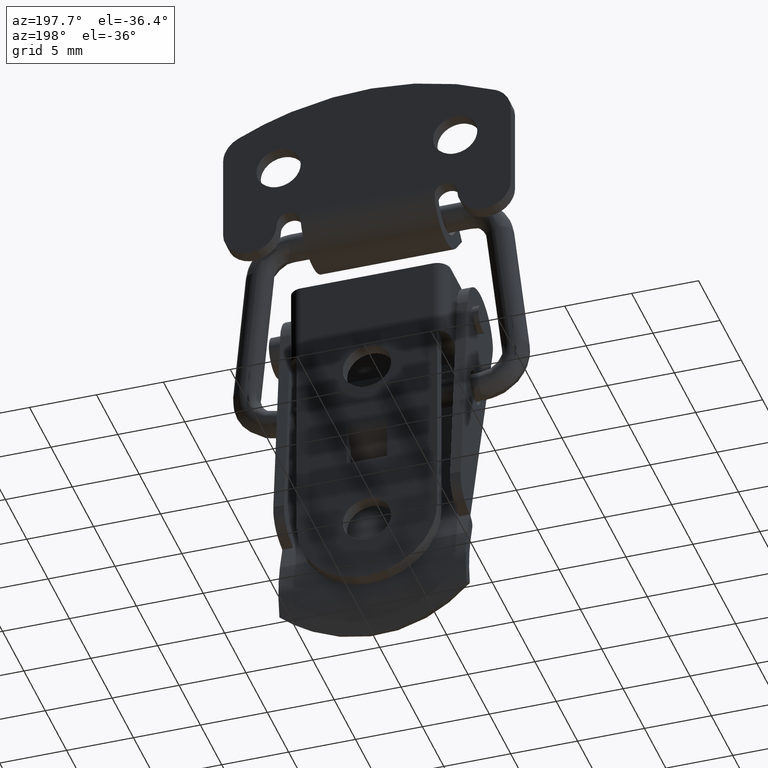
[diagram: clean part render]
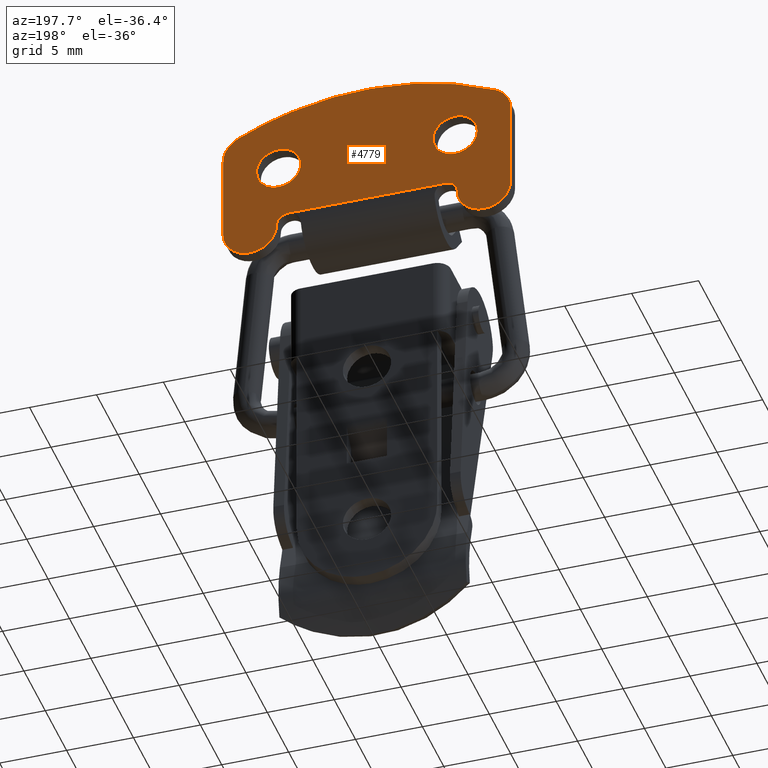
[diagram: same view with one face highlighted and labeled with its STEP entity id]
A machine part, auxiliary view. The second image highlights one B-rep face of the part: STEP entity #4779.
In plain terms, the highlighted face is a freeform B-spline surface patch.
Its self-contained STEP definition (entity closure, byte-faithful):
#4032=CARTESIAN_POINT('',(-8.249999999999767,2.999999999999890,5.000000634479513));
#4033=VERTEX_POINT('',#4032);
#4034=CARTESIAN_POINT('',(-7.816507687401343,3.000000000003440,6.114723987338057));
#4035=VERTEX_POINT('',#4034);
#4036=CARTESIAN_POINT('',(-8.249999999999767,2.999999999999890,5.000000634479513));
#4037=CARTESIAN_POINT('',(-8.250055250174205,3.000000000000380,5.152995649112715));
#4038=CARTESIAN_POINT('',(-8.214272614105509,3.000000000001187,5.407944703312099));
#4039=CARTESIAN_POINT('',(-8.065757588789712,3.000000000002409,5.789814283645971));
#4040=CARTESIAN_POINT('',(-7.919917181299535,3.000000000003078,6.001965037808980));
#4041=CARTESIAN_POINT('',(-7.816507687401343,3.000000000003440,6.114723987338057));
#4042=B_SPLINE_CURVE_WITH_KNOTS('',3,(#4036,#4037,#4038,#4039,#4040,#4041),.UNSPECIFIED.,.F.,.U.,(4,1,1,4),(0.000000014162469,0.458969608806597,0.764948868975775,1.223918463629260),.UNSPECIFIED.);
#4043=EDGE_CURVE('',#4033,#4035,#4042,.T.);
#4089=CARTESIAN_POINT('',(-5.383492312598440,3.000000000003440,3.885276012661946));
#4090=VERTEX_POINT('',#4089);
#4096=CARTESIAN_POINT('',(-6.599999999999890,2.999999999999890,3.350000000000000));
#4097=VERTEX_POINT('',#4096);
#4098=CARTESIAN_POINT('',(-5.383492312598440,3.000000000003440,3.885276012661946));
#4099=CARTESIAN_POINT('',(-5.494153658532897,3.000000000003122,3.764410641251468));
#4100=CARTESIAN_POINT('',(-5.695854133266082,3.000000000002518,3.601430605762216));
#4101=CARTESIAN_POINT('',(-6.108517466391270,3.000000000001345,3.403661427441670));
#4102=CARTESIAN_POINT('',(-6.400478047916385,3.000000000000465,3.349814301085778));
#4103=CARTESIAN_POINT('',(-6.599999999999890,2.999999999999890,3.350000000000000));
#4104=B_SPLINE_CURVE_WITH_KNOTS('',3,(#4098,#4099,#4100,#4101,#4102,#4103),.UNSPECIFIED.,.F.,.U.,(4,1,1,4),(0.000000019402058,0.491594447518936,0.769443762040671,1.367911378273335),.UNSPECIFIED.);
#4105=EDGE_CURVE('',#4090,#4097,#4104,.T.);
#4107=CARTESIAN_POINT('',(-6.599999999999890,2.999999999999890,3.350000000000000));
#4108=CARTESIAN_POINT('',(-6.802518637379901,2.999999999999905,3.349813338087131));
#4109=CARTESIAN_POINT('',(-7.099355698861318,2.999999999999863,3.405383660577439));
#4110=CARTESIAN_POINT('',(-7.476813294727130,2.999999999999915,3.589654319035244));
#4111=CARTESIAN_POINT('',(-7.730819853970726,2.999999999999848,3.782898491996872));
#4112=CARTESIAN_POINT('',(-7.958208108330263,2.999999999999925,4.043274115688624));
#4113=CARTESIAN_POINT('',(-8.122234309618209,2.999999999999880,4.332784804903581));
#4114=CARTESIAN_POINT('',(-8.226669399902521,2.999999999999890,4.662534572349608));
#4115=CARTESIAN_POINT('',(-8.250018328308235,2.999999999999892,4.885260555991922));
#4116=CARTESIAN_POINT('',(-8.249999999999767,2.999999999999890,5.000000634479513));
#4117=B_SPLINE_CURVE_WITH_KNOTS('',3,(#4107,#4108,#4109,#4110,#4111,#4112,#4113,#4114,#4115,#4116),.UNSPECIFIED.,.F.,.U.,(4,1,1,1,1,1,1,4),(0.000000061679862,0.607459857361470,0.890945259119692,1.255426181788305,1.559140442053487,1.923624093627769,2.247612222647330,2.591830559355100),.UNSPECIFIED.);
#4118=EDGE_CURVE('',#4097,#4033,#4117,.T.);
#4141=CARTESIAN_POINT('',(-6.599999999999890,2.999999999999890,6.650000000000000));
#4142=VERTEX_POINT('',#4141);
#4143=CARTESIAN_POINT('',(-7.816507687401343,3.000000000003440,6.114723987338057));
#4144=CARTESIAN_POINT('',(-7.725081102050168,3.000000000003174,6.214554549944727));
#4145=CARTESIAN_POINT('',(-7.555694510552814,3.000000000002682,6.358879630793741));
#4146=CARTESIAN_POINT('',(-7.268037955702399,3.000000000001835,6.517971465583953));
#4147=CARTESIAN_POINT('',(-6.963335139533458,3.000000000000951,6.622449984478704));
#4148=CARTESIAN_POINT('',(-6.728243765372186,3.000000000000267,6.650027919015082));
#4149=CARTESIAN_POINT('',(-6.599999999999890,2.999999999999890,6.650000000000000));
#4150=B_SPLINE_CURVE_WITH_KNOTS('',3,(#4143,#4144,#4145,#4146,#4147,#4148,#4149),.UNSPECIFIED.,.F.,.U.,(4,1,1,1,4),(0.000000019403713,0.406100436897822,0.662592493900090,0.983185558102345,1.367911378273337),.UNSPECIFIED.);
#4151=EDGE_CURVE('',#4035,#4142,#4150,.T.);
#4153=CARTESIAN_POINT('',(-4.950000000000012,2.999999999999890,4.999999365520504));
#4154=VERTEX_POINT('',#4153);
#4155=CARTESIAN_POINT('',(-6.599999999999890,2.999999999999890,6.650000000000000));
#4156=CARTESIAN_POINT('',(-6.444756143433553,2.999999999999885,6.650059574056550));
#4157=CARTESIAN_POINT('',(-6.147810879328648,2.999999999999896,6.607773358600144));
#4158=CARTESIAN_POINT('',(-5.760999441068412,2.999999999999887,6.439171194676894));
#4159=CARTESIAN_POINT('',(-5.469184382214801,2.999999999999899,6.217094627409462));
#4160=CARTESIAN_POINT('',(-5.264092333260605,2.999999999999888,5.982249202123782));
#4161=CARTESIAN_POINT('',(-5.109362155060333,2.999999999999892,5.727657242960341));
#4162=CARTESIAN_POINT('',(-4.984861689772249,2.999999999999896,5.404950048025358));
#4163=CARTESIAN_POINT('',(-4.949952615234288,2.999999999999862,5.148492273342455));
#4164=CARTESIAN_POINT('',(-4.950000000000012,2.999999999999890,4.999999365520504));
#4165=B_SPLINE_CURVE_WITH_KNOTS('',3,(#4155,#4156,#4157,#4158,#4159,#4160,#4161,#4162,#4163,#4164),.UNSPECIFIED.,.F.,.U.,(4,1,1,1,1,1,1,4),(0.000000061677799,0.465714408697295,0.890945259118685,1.255426181787629,1.559140442053028,1.822377958749432,2.146361915403457,2.591830559355110),.UNSPECIFIED.);
#4166=EDGE_CURVE('',#4142,#4154,#4165,.T.);
#4168=CARTESIAN_POINT('',(-4.950000000000012,2.999999999999890,4.999999365520504));
#4169=CARTESIAN_POINT('',(-4.949942536327955,3.000000000000381,4.847003352823802));
#4170=CARTESIAN_POINT('',(-4.985732629451881,3.000000000001186,4.592057667858182));
#4171=CARTESIAN_POINT('',(-5.134236214929431,3.000000000002411,4.210184271131351));
#4172=CARTESIAN_POINT('',(-5.280085289725208,3.000000000003074,3.998035476855808));
#4173=CARTESIAN_POINT('',(-5.383492312598440,3.000000000003440,3.885276012661946));
#4174=B_SPLINE_CURVE_WITH_KNOTS('',3,(#4168,#4169,#4170,#4171,#4172,#4173),.UNSPECIFIED.,.F.,.U.,(4,1,1,4),(0.000000014163691,0.458969608807417,0.764948868976246,1.223918463629261),.UNSPECIFIED.);
#4175=EDGE_CURVE('',#4154,#4090,#4174,.T.);
#4235=CARTESIAN_POINT('',(4.950000000000122,2.999999999999890,5.000000634479513));
#4236=VERTEX_POINT('',#4235);
#4237=CARTESIAN_POINT('',(5.383492312598547,3.000000000003440,6.114723987338056));
#4238=VERTEX_POINT('',#4237);
#4239=CARTESIAN_POINT('',(4.950000000000122,2.999999999999890,5.000000634479513));
#4240=CARTESIAN_POINT('',(4.949992553691829,3.000000000000259,5.114740218315997));
#4241=CARTESIAN_POINT('',(4.977993534100177,3.000000000001101,5.382483525466798));
#4242=CARTESIAN_POINT('',(5.118354685787191,3.000000000002366,5.769749309133959));
#4243=CARTESIAN_POINT('',(5.288723540560421,3.000000000003094,6.011349364711681));
#4244=CARTESIAN_POINT('',(5.383492312598547,3.000000000003440,6.114723987338056));
#4245=B_SPLINE_CURVE_WITH_KNOTS('',3,(#4239,#4240,#4241,#4242,#4243,#4244),.UNSPECIFIED.,.F.,.U.,(4,1,1,4),(0.000000014163665,0.344227092620481,0.803196382845267,1.223918463629252),.UNSPECIFIED.);
#4246=EDGE_CURVE('',#4236,#4238,#4245,.T.);
#4292=CARTESIAN_POINT('',(7.816507687401449,3.000000000003440,3.885276012661945));
#4293=VERTEX_POINT('',#4292);
#4299=CARTESIAN_POINT('',(6.600000000000000,2.999999999999890,3.350000000000000));
#4300=VERTEX_POINT('',#4299);
#4301=CARTESIAN_POINT('',(7.816507687401449,3.000000000003440,3.885276012661945));
#4302=CARTESIAN_POINT('',(7.681846477230228,3.000000000003050,3.738049781750523));
#4303=CARTESIAN_POINT('',(7.456465305554273,3.000000000002383,3.567892728280767));
#4304=CARTESIAN_POINT('',(7.034530828818373,3.000000000001168,3.391958735019776));
#4305=CARTESIAN_POINT('',(6.778131574964126,3.000000000000411,3.349881938907488));
#4306=CARTESIAN_POINT('',(6.600000000000000,2.999999999999890,3.350000000000000));
#4307=B_SPLINE_CURVE_WITH_KNOTS('',3,(#4301,#4302,#4303,#4304,#4305,#4306),.UNSPECIFIED.,.F.,.U.,(4,1,1,4),(0.000000019402402,0.598467635656701,0.833569695861870,1.367911378273336),.UNSPECIFIED.);
#4308=EDGE_CURVE('',#4293,#4300,#4307,.T.);
#4310=CARTESIAN_POINT('',(6.600000000000000,2.999999999999890,3.350000000000000));
#4311=CARTESIAN_POINT('',(6.498758778887157,2.999999999999894,3.349994920608063));
#4312=CARTESIAN_POINT('',(6.262520606432459,2.999999999999876,3.371785865888410));
#4313=CARTESIAN_POINT('',(5.918925432290155,2.999999999999912,3.480628145173856));
#4314=CARTESIAN_POINT('',(5.581085300332211,2.999999999999865,3.683117367776255));
#4315=CARTESIAN_POINT('',(5.313391371733241,2.999999999999912,3.944335054667229));
#4316=CARTESIAN_POINT('',(5.119114754741800,2.999999999999856,4.247029610282270));
#4317=CARTESIAN_POINT('',(4.984868948216605,2.999999999999915,4.595053480455917));
#4318=CARTESIAN_POINT('',(4.949950310378043,2.999999999999875,4.851506722947601));
#4319=CARTESIAN_POINT('',(4.950000000000122,2.999999999999890,5.000000634479513));
#4320=B_SPLINE_CURVE_WITH_KNOTS('',3,(#4310,#4311,#4312,#4313,#4314,#4315,#4316,#4317,#4318,#4319),.UNSPECIFIED.,.F.,.U.,(4,1,1,1,1,1,1,4),(0.000000061678732,0.303728204629689,0.708704262968170,1.073187115797470,1.478153228265539,1.822377958749495,2.146361915403507,2.591830559355101),.UNSPECIFIED.);
#4321=EDGE_CURVE('',#4300,#4236,#4320,.T.);
#4344=CARTESIAN_POINT('',(6.600000000000000,2.999999999999890,6.650000000000000));
#4345=VERTEX_POINT('',#4344);
#4346=CARTESIAN_POINT('',(5.383492312598547,3.000000000003440,6.114723987338056));
#4347=CARTESIAN_POINT('',(5.484538115361562,3.000000000003146,6.225068275206428));
#4348=CARTESIAN_POINT('',(5.683733070237203,3.000000000002566,6.390371574982144));
#4349=CARTESIAN_POINT('',(6.094266758356400,3.000000000001367,6.593719075281227));
#4350=CARTESIAN_POINT('',(6.400481139376791,3.000000000000479,6.650183623218279));
#4351=CARTESIAN_POINT('',(6.600000000000000,2.999999999999890,6.650000000000000));
#4352=B_SPLINE_CURVE_WITH_KNOTS('',3,(#4346,#4347,#4348,#4349,#4350,#4351),.UNSPECIFIED.,.F.,.U.,(4,1,1,4),(0.000000019403241,0.448848036990465,0.769443762040892,1.367911378273337),.UNSPECIFIED.);
#4353=EDGE_CURVE('',#4238,#4345,#4352,.T.);
#4355=CARTESIAN_POINT('',(8.249999999999879,2.999999999999890,4.999999365520505));
#4356=VERTEX_POINT('',#4355);
#4357=CARTESIAN_POINT('',(6.600000000000000,2.999999999999890,6.650000000000000));
#4358=CARTESIAN_POINT('',(6.775502386807408,2.999999999999876,6.650107219549040));
#4359=CARTESIAN_POINT('',(7.072408831964851,2.999999999999923,6.602143318502515));
#4360=CARTESIAN_POINT('',(7.455204719420879,2.999999999999847,6.426812796518338));
#4361=CARTESIAN_POINT('',(7.730817703207532,2.999999999999941,6.217097868293144));
#4362=CARTESIAN_POINT('',(7.958208603311853,2.999999999999850,5.956726577912534));
#4363=CARTESIAN_POINT('',(8.122234189013453,2.999999999999938,5.667215047157380));
#4364=CARTESIAN_POINT('',(8.226669351468667,2.999999999999886,5.337465325965609));
#4365=CARTESIAN_POINT('',(8.250018569690747,2.999999999999889,5.114739559347987));
#4366=CARTESIAN_POINT('',(8.249999999999879,2.999999999999890,4.999999365520505));
#4367=B_SPLINE_CURVE_WITH_KNOTS('',3,(#4357,#4358,#4359,#4360,#4361,#4362,#4363,#4364,#4365,#4366),.UNSPECIFIED.,.F.,.U.,(4,1,1,1,1,1,1,4),(0.000000061680916,0.526465289519307,0.890945259120569,1.255426181789039,1.559140442054072,1.923624093628035,2.247612222647392,2.591830559355091),.UNSPECIFIED.);
#4368=EDGE_CURVE('',#4345,#4356,#4367,.T.);
#4370=CARTESIAN_POINT('',(8.249999999999879,2.999999999999890,4.999999365520505));
#4371=CARTESIAN_POINT('',(8.250020149759637,3.000000000000297,4.872507184303509));
#4372=CARTESIAN_POINT('',(8.220311941511225,3.000000000001103,4.617535009182014));
#4373=CARTESIAN_POINT('',(8.080366229623474,3.000000000002346,4.231389874278855));
#4374=CARTESIAN_POINT('',(7.919911768242454,3.000000000003075,3.998038035708956));
#4375=CARTESIAN_POINT('',(7.816507687401449,3.000000000003440,3.885276012661945));
#4376=B_SPLINE_CURVE_WITH_KNOTS('',3,(#4370,#4371,#4372,#4373,#4374,#4375),.UNSPECIFIED.,.F.,.U.,(4,1,1,4),(0.000000014163383,0.382474584927276,0.764948868976077,1.223918463629269),.UNSPECIFIED.);
#4377=EDGE_CURVE('',#4356,#4293,#4376,.T.);
#4592=CARTESIAN_POINT('',(-5.874999999999830,2.999999999999890,0.875000000000000));
#4593=VERTEX_POINT('',#4592);
#4599=CARTESIAN_POINT('',(5.875000000000000,2.999999999999890,0.875000000000000));
#4600=VERTEX_POINT('',#4599);
#4601=CARTESIAN_POINT('',(5.875000000000000,2.999999999999890,0.875000000000000));
#4602=CARTESIAN_POINT('',(-5.874999999999830,2.999999999999890,0.875000000000000));
#4603=QUASI_UNIFORM_CURVE('',1,(#4601,#4602),.UNSPECIFIED.,.F.,.U.);
#4604=EDGE_CURVE('',#4600,#4593,#4603,.T.);
#4614=CARTESIAN_POINT('',(11.823924958328830,2.999999999999885,11.124370751494540));
#4615=CARTESIAN_POINT('',(-11.823925535003770,2.999999999999885,11.124370751494540));
#4616=CARTESIAN_POINT('',(11.823924958328830,2.999999999999885,-2.624375110084185));
#4617=CARTESIAN_POINT('',(-11.823925535003770,2.999999999999885,-2.624375110084185));
#4618=B_SPLINE_SURFACE_WITH_KNOTS('',1,1,((#4614,#4616),(#4615,#4617)),.UNSPECIFIED.,.F.,.F.,.U.,(2,2),(2,2),(0.0,23.647850493332601),(0.0,13.748745861578730),.UNSPECIFIED.);
#4619=CARTESIAN_POINT('',(-10.750000000000000,2.999999999999890,6.484367999999790));
#4620=VERTEX_POINT('',#4619);
#4621=CARTESIAN_POINT('',(-9.625000078594971,2.999999999999890,8.282804995425860));
#4622=VERTEX_POINT('',#4621);
#4623=CARTESIAN_POINT('',(-10.750000000000000,2.999999999999890,6.484367999999790));
#4624=CARTESIAN_POINT('',(-10.750008493691629,2.999999999999893,6.612467540162585));
#4625=CARTESIAN_POINT('',(-10.721958436296839,2.999999999999876,6.903613277727920));
#4626=CARTESIAN_POINT('',(-10.594968912300910,2.999999999999903,7.294124034562769));
#4627=CARTESIAN_POINT('',(-10.372661870127780,2.999999999999882,7.678740882370087));
#4628=CARTESIAN_POINT('',(-10.066276404989781,2.999999999999886,8.018596244469256));
#4629=CARTESIAN_POINT('',(-9.782106062364866,2.999999999999897,8.206426458993382));
#4630=CARTESIAN_POINT('',(-9.625000078594971,2.999999999999890,8.282804995425860));
#4631=B_SPLINE_CURVE_WITH_KNOTS('',3,(#4623,#4624,#4625,#4626,#4627,#4628,#4629,#4630),.UNSPECIFIED.,.F.,.U.,(4,1,1,1,1,4),(0.000000027114579,0.384306519892605,0.873434825870517,1.222793922160420,1.711929232378473,2.235987931237556),.UNSPECIFIED.);
#4632=EDGE_CURVE('',#4620,#4622,#4631,.T.);
#4633=ORIENTED_EDGE('',*,*,#4632,.T.);
#4634=CARTESIAN_POINT('',(9.625000078594880,2.999999999999890,8.282804995425899));
#4635=VERTEX_POINT('',#4634);
#4636=CARTESIAN_POINT('',(-9.625000078594971,2.999999999999890,8.282804995425860));
#4637=CARTESIAN_POINT('',(-8.365350540522886,2.999999999999898,8.895874151648508));
#4638=CARTESIAN_POINT('',(-6.167885028596505,2.999999999999873,9.715878570949123));
#4639=CARTESIAN_POINT('',(-2.752650346574941,2.999999999999922,10.401515330521679));
#4640=CARTESIAN_POINT('',(-0.024801648351971,2.999999999999841,10.556045400417201));
#4641=CARTESIAN_POINT('',(2.799654648421432,2.999999999999934,10.370910071555249));
#4642=CARTESIAN_POINT('',(5.921103847249126,2.999999999999814,9.801641271065224));
#4643=CARTESIAN_POINT('',(8.295373331192673,2.999999999999901,8.929930174868133));
#4644=CARTESIAN_POINT('',(9.625000078594880,2.999999999999890,8.282804995425899));
#4645=B_SPLINE_CURVE_WITH_KNOTS('',3,(#4636,#4637,#4638,#4639,#4640,#4641,#4642,#4643,#4644),.UNSPECIFIED.,.F.,.U.,(4,1,1,1,1,1,4),(6.345218E-009,4.202704615287036,7.004515436450209,10.428927123822231,12.374628674502430,15.487751180650360,19.923940732889569),.UNSPECIFIED.);
#4646=EDGE_CURVE('',#4622,#4635,#4645,.T.);
#4647=ORIENTED_EDGE('',*,*,#4646,.T.);
#4648=CARTESIAN_POINT('',(10.750000000000000,2.999999999999890,6.484367999999790));
#4649=VERTEX_POINT('',#4648);
#4650=CARTESIAN_POINT('',(9.625000078594880,2.999999999999890,8.282804995425899));
#4651=CARTESIAN_POINT('',(9.761142460159787,2.999999999999890,8.216589102969644));
#4652=CARTESIAN_POINT('',(10.047997591785951,2.999999999999884,8.034203680300712));
#4653=CARTESIAN_POINT('',(10.360982685027199,2.999999999999919,7.699004781366902));
#4654=CARTESIAN_POINT('',(10.594965514148830,2.999999999999857,7.294120443285368));
#4655=CARTESIAN_POINT('',(10.721957807889030,2.999999999999900,6.903613078162987));
#4656=CARTESIAN_POINT('',(10.750008673701240,2.999999999999883,6.612467658133785));
#4657=CARTESIAN_POINT('',(10.750000000000000,2.999999999999890,6.484367999999790));
#4658=B_SPLINE_CURVE_WITH_KNOTS('',3,(#4650,#4651,#4652,#4653,#4654,#4655,#4656,#4657),.UNSPECIFIED.,.F.,.U.,(4,1,1,1,1,4),(0.000000027114740,0.454184859615298,1.013194050919824,1.362553152283530,1.851681465371605,2.235987963733813),.UNSPECIFIED.);
#4659=EDGE_CURVE('',#4635,#4649,#4658,.T.);
#4660=ORIENTED_EDGE('',*,*,#4659,.T.);
#4661=CARTESIAN_POINT('',(10.750000000000000,2.999999999999890,-6.582259E-016));
#4662=VERTEX_POINT('',#4661);
#4663=CARTESIAN_POINT('',(10.750000000000000,2.999999999999890,6.484367999999790));
#4664=CARTESIAN_POINT('',(10.750000000000000,2.999999999999890,-6.582259E-016));
#4665=QUASI_UNIFORM_CURVE('',1,(#4663,#4664),.UNSPECIFIED.,.F.,.U.);
#4666=EDGE_CURVE('',#4649,#4662,#4665,.T.);
#4667=ORIENTED_EDGE('',*,*,#4666,.T.);
#4668=CARTESIAN_POINT('',(8.749999831001817,2.999999999999890,-1.999999999999993));
#4669=VERTEX_POINT('',#4668);
#4670=CARTESIAN_POINT('',(10.750000000000000,2.999999999999890,-6.582259E-016));
#4671=CARTESIAN_POINT('',(10.750062421914830,2.999999999999898,-0.179992056540838));
#4672=CARTESIAN_POINT('',(10.706620219791519,2.999999999999890,-0.499024975296426));
#4673=CARTESIAN_POINT('',(10.520196329815120,2.999999999999852,-0.973753738461583));
#4674=CARTESIAN_POINT('',(10.275447453099060,2.999999999999981,-1.316779567964475));
#4675=CARTESIAN_POINT('',(9.924997042778799,2.999999999999830,-1.638339100868093));
#4676=CARTESIAN_POINT('',(9.560633448312913,2.999999999999907,-1.850737022025041));
#4677=CARTESIAN_POINT('',(9.126326030200360,2.999999999999909,-1.976577728339150));
#4678=CARTESIAN_POINT('',(8.872718578683180,2.999999999999848,-2.000009893012463));
#4679=CARTESIAN_POINT('',(8.749999831001817,2.999999999999890,-1.999999999999993));
#4680=B_SPLINE_CURVE_WITH_KNOTS('',3,(#4670,#4671,#4672,#4673,#4674,#4675,#4676,#4677,#4678,#4679),.UNSPECIFIED.,.F.,.U.,(4,1,1,1,1,1,1,4),(0.000000061772066,0.539963455979207,0.957211318895669,1.521731461534058,1.791686144856627,2.380753807344703,2.773454894957933,3.141612461005967),.UNSPECIFIED.);
#4681=EDGE_CURVE('',#4662,#4669,#4680,.T.);
#4682=ORIENTED_EDGE('',*,*,#4681,.T.);
#4683=CARTESIAN_POINT('',(6.750000000000000,2.999999999999890,0.000000349065849));
#4684=VERTEX_POINT('',#4683);
#4685=CARTESIAN_POINT('',(8.749999831001817,2.999999999999890,-1.999999999999993));
#4686=CARTESIAN_POINT('',(8.553636515156391,2.999999999999887,-2.000096350628971));
#4687=CARTESIAN_POINT('',(8.267355709813440,2.999999999999900,-1.957469288866038));
#4688=CARTESIAN_POINT('',(7.853258578559954,2.999999999999877,-1.800641850185333));
#4689=CARTESIAN_POINT('',(7.466045651477719,2.999999999999899,-1.565437585262004));
#4690=CARTESIAN_POINT('',(7.114456620582445,2.999999999999887,-1.191563336759685));
#4691=CARTESIAN_POINT('',(6.905002521379174,2.999999999999888,-0.799504684053415));
#4692=CARTESIAN_POINT('',(6.781310666563419,2.999999999999891,-0.417222840874398));
#4693=CARTESIAN_POINT('',(6.749954139605607,2.999999999999906,-0.163628758771415));
#4694=CARTESIAN_POINT('',(6.750000000000000,2.999999999999890,0.000000349065849));
#4695=B_SPLINE_CURVE_WITH_KNOTS('',3,(#4685,#4686,#4687,#4688,#4689,#4690,#4691,#4692,#4693,#4694),.UNSPECIFIED.,.F.,.U.,(4,1,1,1,1,1,1,4),(0.000000061771210,0.589048763356433,0.859036358932166,1.325370402942765,1.938963830030581,2.380753812074962,2.650737106613678,3.141612467244963),.UNSPECIFIED.);
#4696=EDGE_CURVE('',#4669,#4684,#4695,.T.);
#4697=ORIENTED_EDGE('',*,*,#4696,.T.);
#4698=CARTESIAN_POINT('',(5.875000000000000,2.999999999999890,0.875000000000000));
#4699=CARTESIAN_POINT('',(5.989549625132558,2.999999999999891,0.875115784191520));
#4700=CARTESIAN_POINT('',(6.197077275512024,2.999999999999887,0.833649986852471));
#4701=CARTESIAN_POINT('',(6.437780077722985,2.999999999999897,0.685297564786590));
#4702=CARTESIAN_POINT('',(6.583058386583660,2.999999999999890,0.524941513452961));
#4703=CARTESIAN_POINT('',(6.709743552892445,2.999999999999865,0.307688475339969));
#4704=CARTESIAN_POINT('',(6.750201418092107,2.999999999999909,0.128899563936530));
#4705=CARTESIAN_POINT('',(6.750000000000000,2.999999999999890,0.000000349065849));
#4706=B_SPLINE_CURVE_WITH_KNOTS('',3,(#4698,#4699,#4700,#4701,#4702,#4703,#4704,#4705),.UNSPECIFIED.,.F.,.U.,(4,1,1,1,1,4),(0.000000091112779,0.343620338251740,0.622827868643160,0.837562327217701,0.987907725098830,1.374481079555277),.UNSPECIFIED.);
#4707=EDGE_CURVE('',#4600,#4684,#4706,.T.);
#4708=ORIENTED_EDGE('',*,*,#4707,.F.);
#4709=ORIENTED_EDGE('',*,*,#4604,.T.);
#4710=CARTESIAN_POINT('',(-6.749999999999830,2.999999999999890,3.597281E-016));
#4711=VERTEX_POINT('',#4710);
#4712=CARTESIAN_POINT('',(-6.749999999999830,2.999999999999890,3.597281E-016));
#4713=CARTESIAN_POINT('',(-6.750128192695414,2.999999999999890,0.114557717886378));
#4714=CARTESIAN_POINT('',(-6.711479224083309,2.999999999999890,0.307740619556446));
#4715=CARTESIAN_POINT('',(-6.584143773751451,2.999999999999897,0.526173187919722));
#4716=CARTESIAN_POINT('',(-6.450214220134572,2.999999999999889,0.666823748591838));
#4717=CARTESIAN_POINT('',(-6.297314856827673,2.999999999999894,0.774527271176354));
#4718=CARTESIAN_POINT('',(-6.104062530653344,2.999999999999884,0.854566647868635));
#4719=CARTESIAN_POINT('',(-5.953746061696562,2.999999999999892,0.875029185686082));
#4720=CARTESIAN_POINT('',(-5.874999999999830,2.999999999999890,0.875000000000000));
#4721=B_SPLINE_CURVE_WITH_KNOTS('',3,(#4712,#4713,#4714,#4715,#4716,#4717,#4718,#4719,#4720),.UNSPECIFIED.,.F.,.U.,(4,1,1,1,1,1,4),(0.000000090873904,0.343620387230296,0.579861498134532,0.751653409503104,0.923473154783174,1.138248805102932,1.374481276299405),.UNSPECIFIED.);
#4722=EDGE_CURVE('',#4711,#4593,#4721,.T.);
#4723=ORIENTED_EDGE('',*,*,#4722,.F.);
#4724=CARTESIAN_POINT('',(-8.750000168998064,2.999999999999890,-1.999999999999993));
#4725=VERTEX_POINT('',#4724);
#4726=CARTESIAN_POINT('',(-6.749999999999830,2.999999999999890,3.597281E-016));
#4727=CARTESIAN_POINT('',(-6.749987305144017,2.999999999999891,-0.130896454288752));
#4728=CARTESIAN_POINT('',(-6.777390655941496,2.999999999999891,-0.409057428501397));
#4729=CARTESIAN_POINT('',(-6.899191317333228,2.999999999999886,-0.793555294055656));
#4730=CARTESIAN_POINT('',(-7.099487406278509,2.999999999999901,-1.152218803686126));
#4731=CARTESIAN_POINT('',(-7.339537333889323,2.999999999999857,-1.433988950400320));
#4732=CARTESIAN_POINT('',(-7.645599382755533,2.999999999999914,-1.682034766841816));
#4733=CARTESIAN_POINT('',(-7.986779286364484,2.999999999999893,-1.864422527848053));
#4734=CARTESIAN_POINT('',(-8.373666937244193,2.999999999999903,-1.976587813286646));
#4735=CARTESIAN_POINT('',(-8.627281462442161,2.999999999999878,-2.000010146438899));
#4736=CARTESIAN_POINT('',(-8.750000168998064,2.999999999999890,-1.999999999999993));
#4737=B_SPLINE_CURVE_WITH_KNOTS('',3,(#4726,#4727,#4728,#4729,#4730,#4731,#4732,#4733,#4734,#4735,#4736),.UNSPECIFIED.,.F.,.U.,(4,1,1,1,1,1,1,1,4),(0.000000061772089,0.392691086907845,0.834491623480133,1.202649940356948,1.619881149542512,1.938963826187615,2.380753807344862,2.773454894958042,3.141612461006005),.UNSPECIFIED.);
#4738=EDGE_CURVE('',#4711,#4725,#4737,.T.);
#4739=ORIENTED_EDGE('',*,*,#4738,.T.);
#4740=CARTESIAN_POINT('',(-10.749999999999860,2.999999999999890,0.000000349065851));
#4741=VERTEX_POINT('',#4740);
#4742=CARTESIAN_POINT('',(-8.750000168998064,2.999999999999890,-1.999999999999993));
#4743=CARTESIAN_POINT('',(-8.970913465430439,2.999999999999898,-2.000127261834888));
#4744=CARTESIAN_POINT('',(-9.298070063389982,2.999999999999876,-1.945229348117580));
#4745=CARTESIAN_POINT('',(-9.704325961701171,2.999999999999909,-1.768049821370335));
#4746=CARTESIAN_POINT('',(-9.993419895683401,2.999999999999867,-1.579993421608680));
#4747=CARTESIAN_POINT('',(-10.226827999496770,2.999999999999911,-1.360474824040092));
#4748=CARTESIAN_POINT('',(-10.443685203342950,2.999999999999885,-1.082621981723773));
#4749=CARTESIAN_POINT('',(-10.598887516065849,2.999999999999909,-0.792252394627824));
#4750=CARTESIAN_POINT('',(-10.720274118393510,2.999999999999888,-0.409043377642709));
#4751=CARTESIAN_POINT('',(-10.750035238833441,2.999999999999886,-0.155443847145420));
#4752=CARTESIAN_POINT('',(-10.749999999999860,2.999999999999890,0.000000349065851));
#4753=B_SPLINE_CURVE_WITH_KNOTS('',3,(#4742,#4743,#4744,#4745,#4746,#4747,#4748,#4749,#4750,#4751,#4752),.UNSPECIFIED.,.F.,.U.,(4,1,1,1,1,1,1,1,4),(0.000000061767811,0.662683954000523,0.981758850795348,1.325370402940296,1.693523501058059,1.938963830028943,2.380753812073961,2.675287418010167,3.141612467244988),.UNSPECIFIED.);
#4754=EDGE_CURVE('',#4725,#4741,#4753,.T.);
#4755=ORIENTED_EDGE('',*,*,#4754,.T.);
#4756=CARTESIAN_POINT('',(-10.749999999999860,2.999999999999890,0.000000349065851));
#4757=CARTESIAN_POINT('',(-10.750000000000000,2.999999999999890,6.484367999999790));
#4758=QUASI_UNIFORM_CURVE('',1,(#4756,#4757),.UNSPECIFIED.,.F.,.U.);
#4759=EDGE_CURVE('',#4741,#4620,#4758,.T.);
#4760=ORIENTED_EDGE('',*,*,#4759,.T.);
#4761=EDGE_LOOP('',(#4633,#4647,#4660,#4667,#4682,#4697,#4708,#4709,#4723,#4739,#4755,#4760));
#4762=FACE_OUTER_BOUND('',#4761,.T.);
#4763=ORIENTED_EDGE('',*,*,#4368,.F.);
#4764=ORIENTED_EDGE('',*,*,#4353,.F.);
#4765=ORIENTED_EDGE('',*,*,#4246,.F.);
#4766=ORIENTED_EDGE('',*,*,#4321,.F.);
#4767=ORIENTED_EDGE('',*,*,#4308,.F.);
#4768=ORIENTED_EDGE('',*,*,#4377,.F.);
#4769=EDGE_LOOP('',(#4763,#4764,#4765,#4766,#4767,#4768));
#4770=FACE_BOUND('',#4769,.T.);
#4771=ORIENTED_EDGE('',*,*,#4166,.F.);
#4772=ORIENTED_EDGE('',*,*,#4151,.F.);
#4773=ORIENTED_EDGE('',*,*,#4043,.F.);
#4774=ORIENTED_EDGE('',*,*,#4118,.F.);
#4775=ORIENTED_EDGE('',*,*,#4105,.F.);
#4776=ORIENTED_EDGE('',*,*,#4175,.F.);
#4777=EDGE_LOOP('',(#4771,#4772,#4773,#4774,#4775,#4776));
#4778=FACE_BOUND('',#4777,.T.);
#4779=ADVANCED_FACE('',(#4762,#4770,#4778),#4618,.F.);